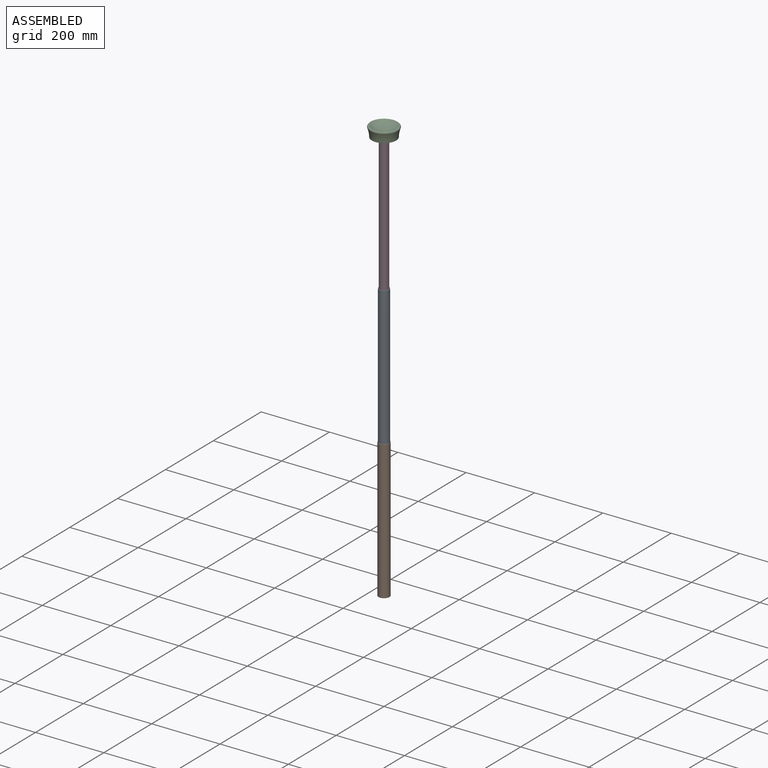
[diagram: assembled view]
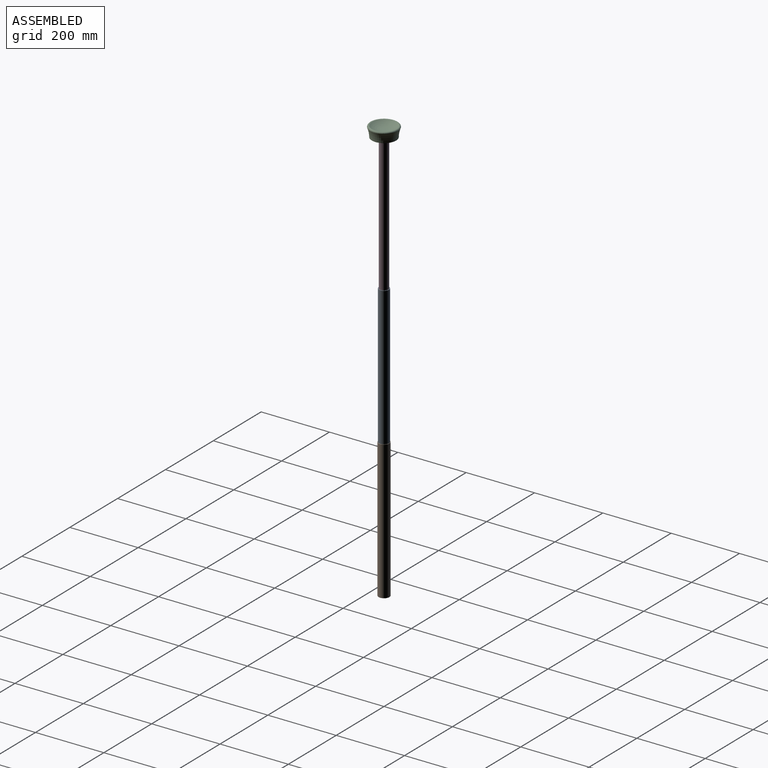
[diagram: assembled view, second angle]
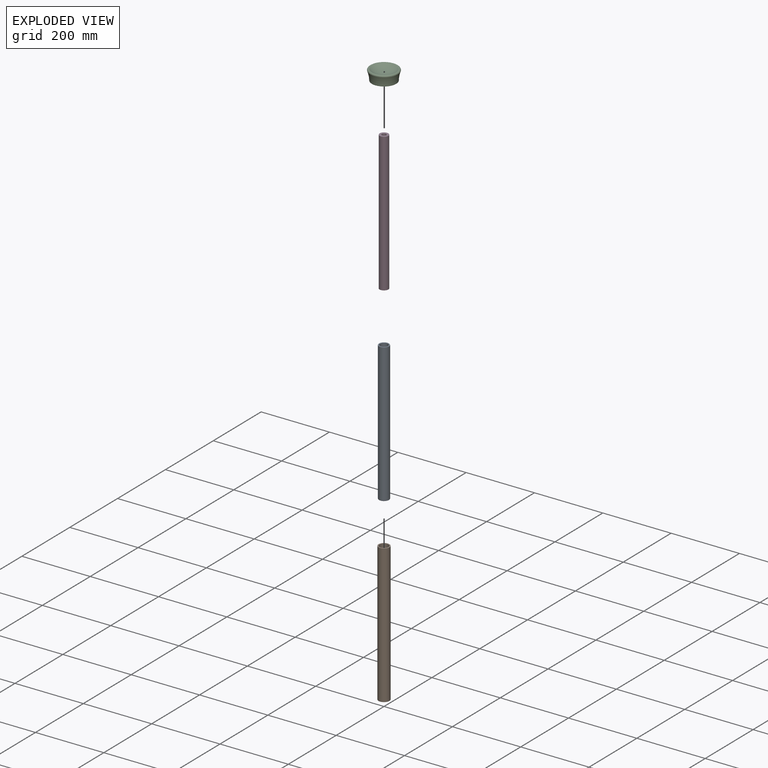
[diagram: exploded view]
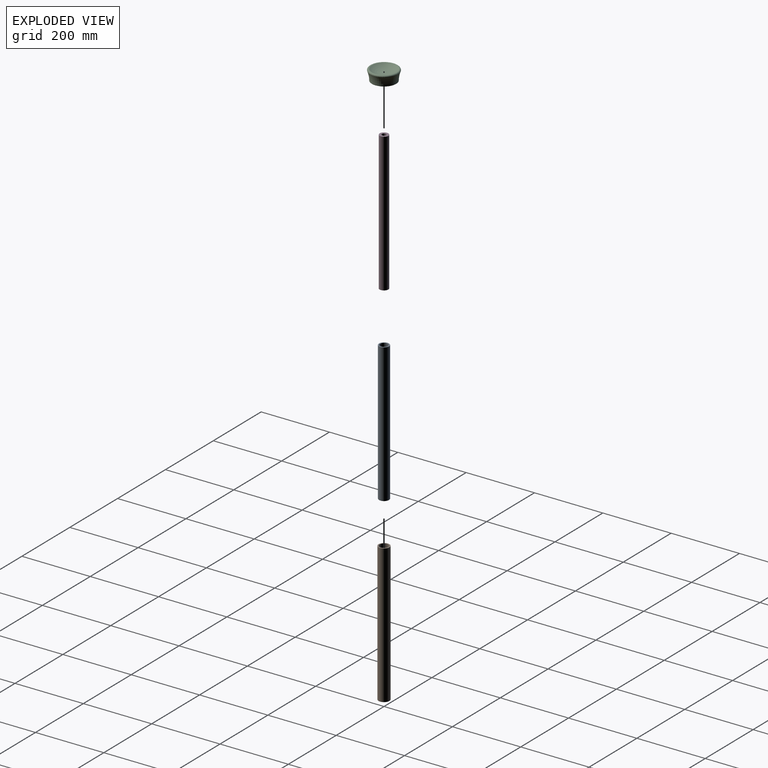
[diagram: exploded view, second angle]
ASSEMBLY  parts=4 mates=3
PART A: 4 faces, bbox 29.2x29.2x406.4 mm
  f0: cylinder r=11.43mm len=406.4mm, axis (0,0,1), area 29186.4mm2, adj f1,f3
  f1: plane 29.21x29.21mm, normal (0,0,1), area 259.7mm2, adj f0,f2
  f2: cylinder r=14.61mm len=406.4mm, axis (0,0,1), area 37293.7mm2, adj f1,f3
  f3: plane 29.21x29.21mm, normal (0,0,-1), area 259.7mm2, adj f0,f2
PART B: 4 faces, bbox 31.8x31.8x406.4 mm
  f0: plane 31.75x31.75mm, normal (0,0,1), area 285mm2, adj f1,f3
  f1: cylinder r=15.88mm len=406.4mm, axis (0,0,1), area 40536.6mm2, adj f0,f2
  f2: plane 31.75x31.75mm, normal (0,0,-1), area 285mm2, adj f1,f3
  f3: cylinder r=12.7mm len=406.4mm, axis (0,0,1), area 32429.3mm2, adj f0,f2
PART C: 7 faces, bbox 88.3x88.3x30.8 mm
  f0: plane 71.07x71.07mm, normal (0,0,-1), area 3460.7mm2, adj f1,f6
  f1: cylinder r=12.7mm len=25.4mm, axis (0,0,1), area 498mm2, adj f0,f2
  f2: plane 25.4x25.4mm, normal (0,0,-1), area 506.7mm2, adj f1
  f3: cone r=4.61mm half-angle=89.8deg, axis (0,0,-1), area 66.8mm2, adj f4
  f4: torus R=4.63mm, axis (0,0,1), area 4148.5mm2, adj f3,f5
  f5: torus R=36.92mm, axis (0,0,1), area 1930.8mm2, adj f4,f6
  f6: revolved ~81.55x81.55mm, area 6465.8mm2, adj f0,f5
PART D: 4 faces, bbox 25.4x25.4x406.4 mm
  f0: cylinder r=6.35mm len=406.4mm, axis (0,0,1), area 16214.6mm2, adj f1,f3
  f1: plane 25.4x25.4mm, normal (0,0,1), area 380mm2, adj f0,f2
  f2: cylinder r=12.7mm len=406.4mm, axis (0,0,1), area 32429.3mm2, adj f1,f3
  f3: plane 25.4x25.4mm, normal (0,0,-1), area 380mm2, adj f0,f2
PLACE A t=(0,0,424.51)mm
PLACE B t=(0,0,15.86)mm
PLACE C t=(0,0,1212.96)mm
PLACE D t=(0,0,955.62)mm
MATE fastened C.f4 <-> D.f0  axis (0,0,-1) through (0,0,1219.2)mm
MATE slider A.f0 <-> B.f1  axis (0,0,-1) through (0,0,406.4)mm
MATE slider D.f0 <-> A.f0  axis (0,0,1) through (0,0,812.8)mm
